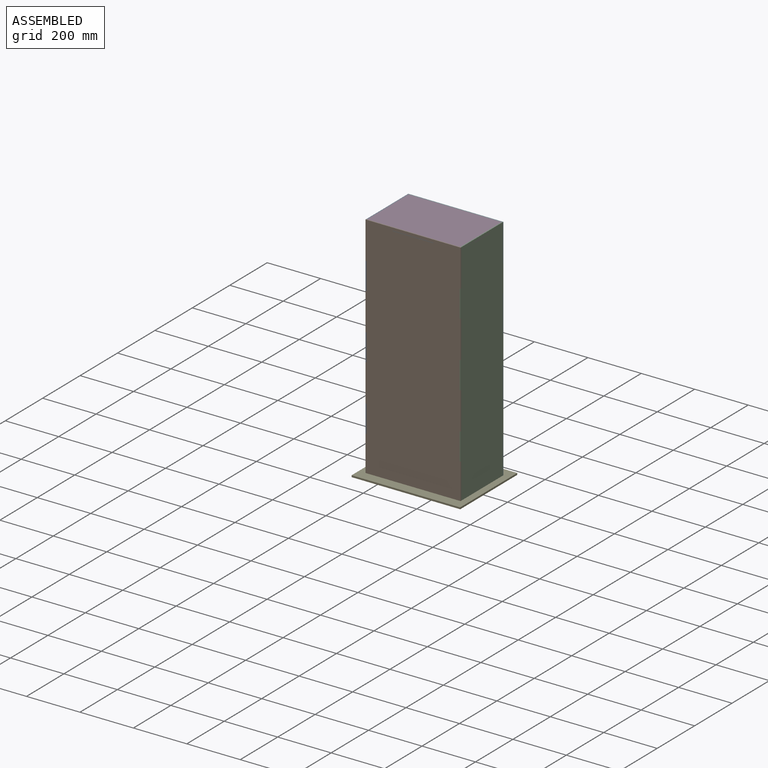
[diagram: assembled view]
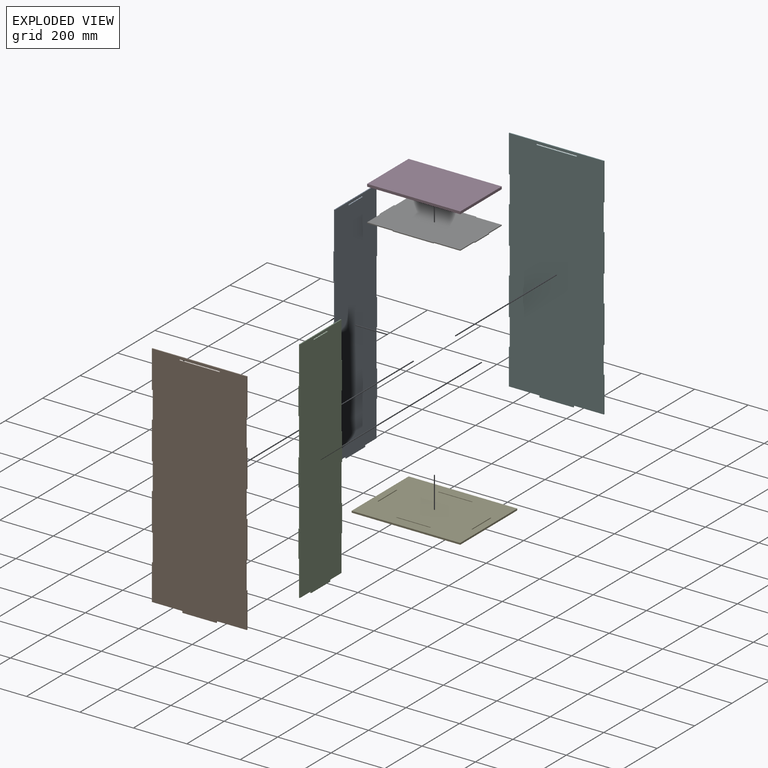
[diagram: exploded view]
GUIDED TOUR — MATED ASSEMBLY (Onshape document dd61b97c338bfc4be1c98395, AutoMate assembly dd61b97c338bfc4be1c98395_4f9fc6d36fec5bf82515c6dc_26c8da67feba95577b72dc35_default)

This assembly has 7 components, labeled P0..P6 below (a component is one placed occurrence of a part; the same part can appear more than once), held together by 18 mates. A mate is a constraint between two components; its type names the relative motion it leaves free:
  PLANAR — leaves sliding in the plane through the listed point (normal = the listed direction) and rotation about that normal free.
Axis/direction vectors are unit vectors and 'through' points are millimeter coordinates, both in the assembly's world frame.

MATES
  1. PLANAR "Planar 8": P0 <-> P4, direction (0.000, 0.000, -1.000) through (-302.09, 69.85, 383.03) mm
  2. PLANAR "Planar 9": P0 <-> P4, direction (0.000, -1.000, 0.000) through (-302.09, -61.79, 379.86) mm
  3. PLANAR "Planar 6": P5 <-> P4, direction (-1.000, 0.000, 0.000) through (-189.50, 101.60, 379.86) mm
  4. PLANAR "Planar 17": P3 <-> P1, direction (0.000, -1.000, 0.000) through (-126.00, -121.87, 1235.52) mm
  5. PLANAR "Planar 18": P3 <-> P6, direction (0.000, 0.000, -1.000) through (-126.00, -10.99, 1230.76) mm
  6. PLANAR "Planar 12": P2 <-> P4, direction (0.000, -1.000, 0.000) through (50.09, -61.79, 379.86) mm
  7. PLANAR "Planar 14": P6 <-> P0, direction (0.000, 0.000, -1.000) through (-126.00, -10.99, 1227.34) mm
  8. PLANAR "Planar 1": P1 <-> P4, direction (0.000, -1.000, 0.000) through (-126.00, -125.29, 809.81) mm
  9. PLANAR "Planar 15": P6 <-> P2, direction (1.000, 0.000, 0.000) through (48.39, -85.48, 1229.05) mm
  10. PLANAR "Planar 3": P1 <-> P4, direction (-1.000, 0.000, 0.000) through (-189.50, -123.58, 376.68) mm
  11. PLANAR "Planar 10": P2 <-> P4, direction (0.000, 0.000, -1.000) through (50.09, 69.85, 383.03) mm
  12. PLANAR "Planar 5": P5 <-> P4, direction (0.000, 0.000, -1.000) through (-246.65, 101.60, 383.03) mm
  13. PLANAR "Planar 7": P4 <-> P0, direction (-1.000, 0.000, 0.000) through (-300.38, -10.99, 379.86) mm
  14. PLANAR "Planar 13": P6 <-> P5, direction (0.000, 1.000, 0.000) through (-0.71, 99.89, 1229.05) mm
  15. PLANAR "Planar 4": P5 <-> P4, direction (0.000, 1.000, 0.000) through (-126.00, 103.31, 809.81) mm
  16. PLANAR "Planar 16": P3 <-> P0, direction (-1.000, 0.000, 0.000) through (-300.38, -10.99, 1230.76) mm
  17. PLANAR "Planar 2": P1 <-> P4, direction (0.000, 0.000, -1.000) through (-246.65, -123.58, 383.03) mm
  18. PLANAR "Planar 11": P2 <-> P4, direction (-1.000, 0.000, 0.000) through (48.39, -10.99, 809.61) mm

ASSEMBLY ORDER
  1. P6 — the base component [order verified]
  2. P4 [order verified]
  3. P3 [order verified]
  4. P2 [order verified]
  5. P0 [order verified]
  6. P5 [order verified]
  7. P1 [order verified]
Order-tag legend:
  [order verified] — this step's position reverses a verified removal order: the component was checked to insert without passing through the ones already placed.

Of the 7 components, 7 carry the full construction recipe — the FeatureScript program that regenerates the part's solid from scratch; the rest are supplied as boundary geometry only.
Each toured component is shown spotlighted twice — in the assembled view, then in the exploded view, where a leader line traces a displaced component back to its assembled socket (saturated green if recipe-attached, orange if geometry-only; every other component desaturated gray) — followed by its recipe or geometry summary and the mates that hold it.
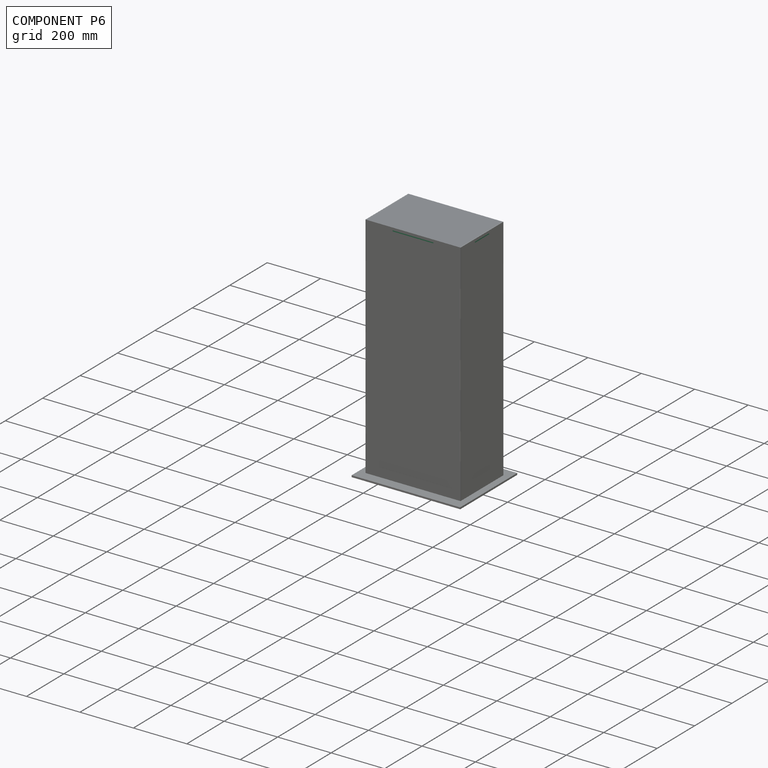
[diagram: component P6 — assembled]
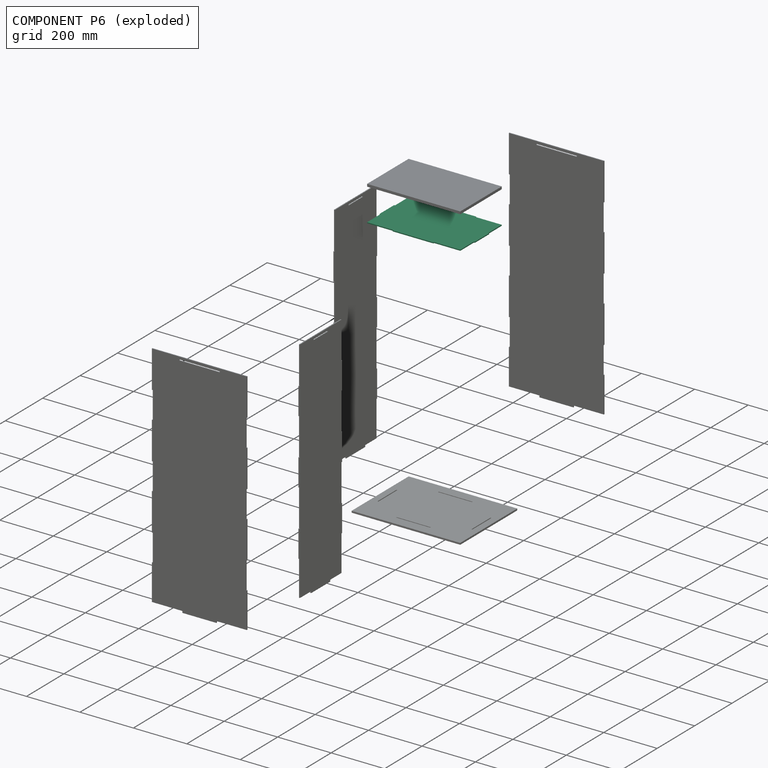
[diagram: component P6 — exploded]
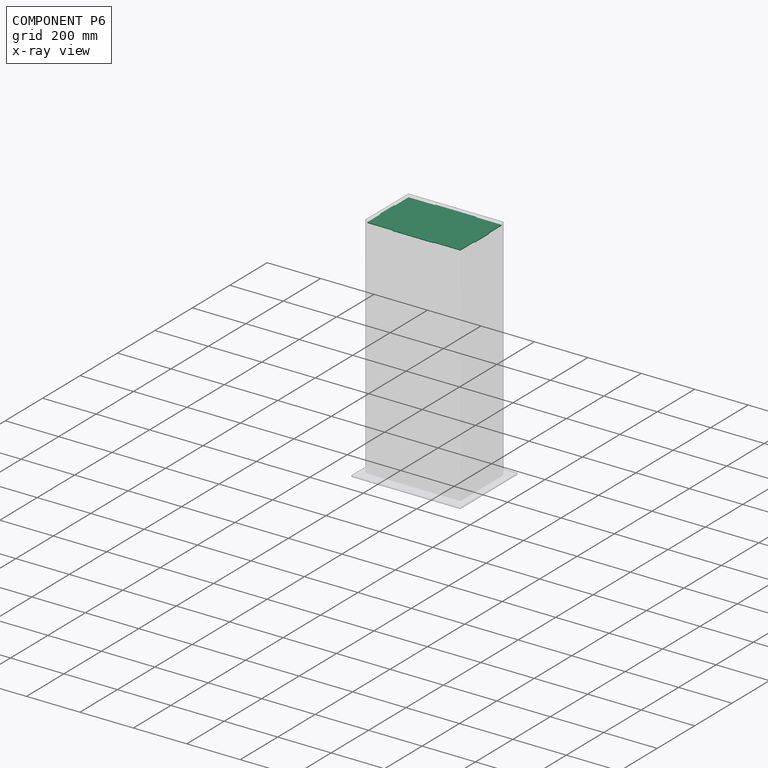
[diagram: component P6 — x-ray view]
COMPONENT P6 — recipe-attached (CADFS 00907408, mesh-verified: the recipe's output STEP matches this component's geometry to below the mesh-comparison resolution (tessellation chordal tolerance ~0.634 mm)).
Held by: PLANAR mate "Planar 18" to P3; PLANAR mate "Planar 14" to P0; PLANAR mate "Planar 15" to P2; PLANAR mate "Planar 13" to P5.
Construction recipe (FeatureScript — the CAD program that rebuilds this solid; sketch coordinates are in the units given by the * unit suffixes, e.g. mm):

FeatureScript 1511;
import(path : "onshape/std/geometry.fs", version : "1511.0");
import(path : "onshape/std/common.fs", version : "1511.0");
const mm = millimeter;
const VERTEX = EntityType.VERTEX;
const EDGE = EntityType.EDGE;
const FACE = EntityType.FACE;
const BODY = EntityType.BODY;
function v(x, y){return vector(x, y);}
function OD(order){return orderDisambiguation(order);}
function OSD(set){return originalSetDisambiguation(set);}
function TD(topology){return topologyDisambiguation(topology);}
function TDD(query){return trueDependencyDisambiguation(query);}
function sQuery(a, b, c) {return sketchEntityQuery(a, b, c);}

annotation { "Feature Type Name" : "Feature", "Feature Type Description" : "" }
export const myFeature = defineFeature(function(context is Context, id is Id, definition is map)
    precondition{}
    {
        {
            var Q0;
            Q0=qCreatedBy(makeId("Top.planeOp"),FACE);
            var sketch = newSketch(context, id + "F0", { "sketchPlane" : qUnion([Q0])});
            skLineSegment(sketch, "E0", {"start": v(-76.2, -114.3) * mm, "end": v(76.2, -114.3) * mm});
            skLineSegment(sketch, "E1", {"start": v(76.2, -114.3) * mm, "end": v(76.2, -110.88) * mm});
            skLineSegment(sketch, "E2", {"start": v(76.2, -110.88) * mm, "end": v(174.38, -110.88) * mm});
            skLineSegment(sketch, "E3", {"start": v(174.38, -110.88) * mm, "end": v(174.38, -38.1) * mm});
            skLineSegment(sketch, "E4", {"start": v(174.38, -38.1) * mm, "end": v(177.8, -38.1) * mm});
            skLineSegment(sketch, "E5", {"start": v(177.8, -38.1) * mm, "end": v(177.8, 38.1) * mm});
            skLineSegment(sketch, "E6", {"start": v(177.8, 38.1) * mm, "end": v(174.38, 38.1) * mm});
            skLineSegment(sketch, "E7", {"start": v(174.38, 38.1) * mm, "end": v(174.38, 110.88) * mm});
            skLineSegment(sketch, "E8", {"start": v(174.38, 110.88) * mm, "end": v(76.2, 110.88) * mm});
            skLineSegment(sketch, "E9", {"start": v(76.2, 110.88) * mm, "end": v(76.2, 114.3) * mm});
            skLineSegment(sketch, "E10", {"start": v(76.2, 114.3) * mm, "end": v(-76.2, 114.3) * mm});
            skLineSegment(sketch, "E11", {"start": v(-76.2, 114.3) * mm, "end": v(-76.2, 110.88) * mm});
            skLineSegment(sketch, "E12", {"start": v(-76.2, 110.88) * mm, "end": v(-174.38, 110.88) * mm});
            skLineSegment(sketch, "E13", {"start": v(-174.38, 110.88) * mm, "end": v(-174.38, 38.1) * mm});
            skLineSegment(sketch, "E14", {"start": v(-174.38, 38.1) * mm, "end": v(-177.8, 38.1) * mm});
            skLineSegment(sketch, "E15", {"start": v(-177.8, 38.1) * mm, "end": v(-177.8, -38.1) * mm});
            skLineSegment(sketch, "E16", {"start": v(-177.8, -38.1) * mm, "end": v(-174.38, -38.1) * mm});
            skLineSegment(sketch, "E17", {"start": v(-174.38, -38.1) * mm, "end": v(-174.38, -110.88) * mm});
            skLineSegment(sketch, "E18", {"start": v(-174.38, -110.88) * mm, "end": v(-76.2, -110.88) * mm});
            skLineSegment(sketch, "E19", {"start": v(-76.2, -110.88) * mm, "end": v(-76.2, -114.3) * mm});
            skSolve(sketch);
        }
        {
            var Q0;
            Q0 = qSketchRegion(id + "F0", true);
            extrude(context, id + "F1", {"entities" : qUnion([Q0]), "depth" : 3.42 * mm, "offsetDistance" : 25.4 * mm});
        }
    });
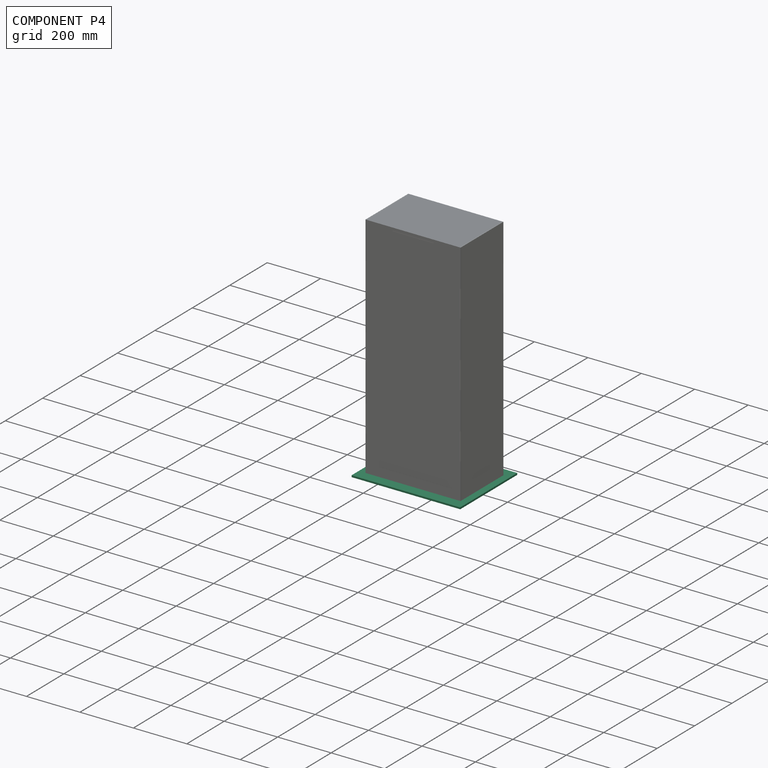
[diagram: component P4 — assembled]
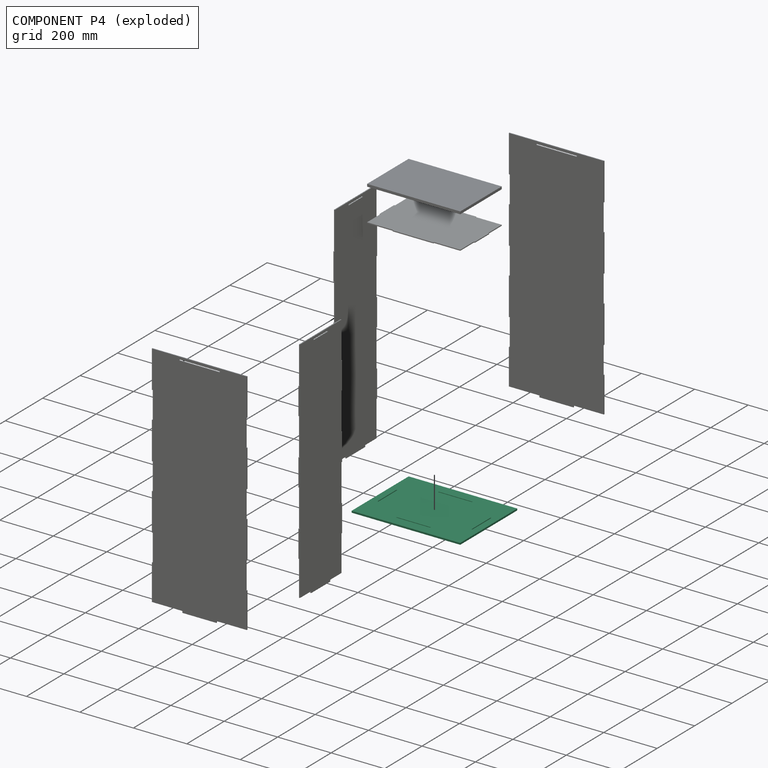
[diagram: component P4 — exploded]
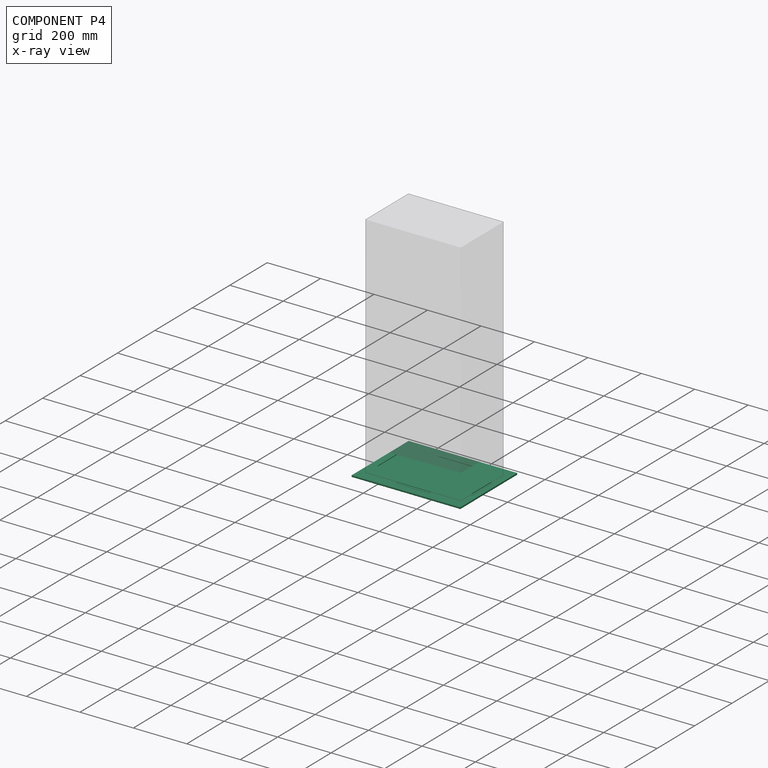
[diagram: component P4 — x-ray view]
COMPONENT P4 — recipe-attached (CADFS 00907405, mesh-verified: the recipe's output STEP matches this component's geometry to below the mesh-comparison resolution (tessellation chordal tolerance ~0.762 mm)).
Held by: PLANAR mate "Planar 8" to P0; PLANAR mate "Planar 9" to P0; PLANAR mate "Planar 6" to P5; PLANAR mate "Planar 12" to P2; PLANAR mate "Planar 1" to P1; PLANAR mate "Planar 3" to P1; PLANAR mate "Planar 10" to P2; PLANAR mate "Planar 5" to P5; PLANAR mate "Planar 7" to P0; PLANAR mate "Planar 4" to P5; PLANAR mate "Planar 2" to P1; PLANAR mate "Planar 11" to P2.
Construction recipe (FeatureScript — the CAD program that rebuilds this solid; sketch coordinates are in the units given by the * unit suffixes, e.g. mm):

FeatureScript 1511;
import(path : "onshape/std/geometry.fs", version : "1511.0");
import(path : "onshape/std/common.fs", version : "1511.0");
const mm = millimeter;
const VERTEX = EntityType.VERTEX;
const EDGE = EntityType.EDGE;
const FACE = EntityType.FACE;
const BODY = EntityType.BODY;
function v(x, y){return vector(x, y);}
function OD(order){return orderDisambiguation(order);}
function OSD(set){return originalSetDisambiguation(set);}
function TD(topology){return topologyDisambiguation(topology);}
function TDD(query){return trueDependencyDisambiguation(query);}
function sQuery(a, b, c) {return sketchEntityQuery(a, b, c);}

annotation { "Feature Type Name" : "Feature", "Feature Type Description" : "" }
export const myFeature = defineFeature(function(context is Context, id is Id, definition is map)
    precondition{}
    {
        {
            var Q0;
            Q0=qCreatedBy(makeId("Top.planeOp"),FACE);
            var sketch = newSketch(context, id + "F0", { "sketchPlane" : qUnion([Q0])});
            skLineSegment(sketch, "E0.bottom", {"start": v(-203.2, 152.4) * mm, "end": v(203.2, 152.4) * mm});
            skLineSegment(sketch, "E0.top", {"start": v(-203.2, -152.4) * mm, "end": v(203.2, -152.4) * mm});
            skLineSegment(sketch, "E0.left", {"start": v(-203.2, 152.4) * mm, "end": v(-203.2, -152.4) * mm});
            skLineSegment(sketch, "E0.right", {"start": v(203.2, 152.4) * mm, "end": v(203.2, -152.4) * mm});
            skLineSegment(sketch, "E1.bottom", {"start": v(-177.8, 50.8) * mm, "end": v(-174.38, 50.8) * mm});
            skLineSegment(sketch, "E1.top", {"start": v(-177.8, -50.8) * mm, "end": v(-174.38, -50.8) * mm});
            skLineSegment(sketch, "E1.left", {"start": v(-177.8, 50.8) * mm, "end": v(-177.8, -50.8) * mm});
            skLineSegment(sketch, "E1.right", {"start": v(-174.38, 50.8) * mm, "end": v(-174.38, -50.8) * mm});
            skLineSegment(sketch, "E2.bottom", {"start": v(-63.5, 114.3) * mm, "end": v(63.5, 114.3) * mm});
            skLineSegment(sketch, "E2.top", {"start": v(-63.5, 110.88) * mm, "end": v(63.5, 110.88) * mm});
            skLineSegment(sketch, "E2.left", {"start": v(-63.5, 114.3) * mm, "end": v(-63.5, 110.88) * mm});
            skLineSegment(sketch, "E2.right", {"start": v(63.5, 114.3) * mm, "end": v(63.5, 110.88) * mm});
            skLineSegment(sketch, "E3.bottom", {"start": v(-63.5, -110.88) * mm, "end": v(63.5, -110.88) * mm});
            skLineSegment(sketch, "E3.top", {"start": v(-63.5, -114.3) * mm, "end": v(63.5, -114.3) * mm});
            skLineSegment(sketch, "E3.left", {"start": v(-63.5, -110.88) * mm, "end": v(-63.5, -114.3) * mm});
            skLineSegment(sketch, "E3.right", {"start": v(63.5, -110.88) * mm, "end": v(63.5, -114.3) * mm});
            skLineSegment(sketch, "E4.bottom", {"start": v(174.38, 50.8) * mm, "end": v(177.8, 50.8) * mm});
            skLineSegment(sketch, "E4.top", {"start": v(174.38, -50.8) * mm, "end": v(177.8, -50.8) * mm});
            skLineSegment(sketch, "E4.left", {"start": v(174.38, 50.8) * mm, "end": v(174.38, -50.8) * mm});
            skLineSegment(sketch, "E4.right", {"start": v(177.8, 50.8) * mm, "end": v(177.8, -50.8) * mm});
            skLineSegment(sketch, "E5", {"start": v(-177.8, 50.8) * mm, "end": v(-177.8, 114.3) * mm, "construction": true});
            skLineSegment(sketch, "E6", {"start": v(-177.8, 114.3) * mm, "end": v(-63.5, 114.3) * mm, "construction": true});
            skLineSegment(sketch, "E7", {"start": v(63.5, 114.3) * mm, "end": v(177.8, 114.3) * mm, "construction": true});
            skLineSegment(sketch, "E8", {"start": v(177.8, 114.3) * mm, "end": v(177.8, 50.8) * mm, "construction": true});
            skLineSegment(sketch, "E9", {"start": v(177.8, -50.8) * mm, "end": v(177.8, -114.3) * mm, "construction": true});
            skLineSegment(sketch, "E10", {"start": v(177.8, -114.3) * mm, "end": v(63.5, -114.3) * mm, "construction": true});
            skLineSegment(sketch, "E11", {"start": v(-63.5, -114.3) * mm, "end": v(-177.8, -114.3) * mm, "construction": true});
            skLineSegment(sketch, "E12", {"start": v(-177.8, -114.3) * mm, "end": v(-177.8, -50.8) * mm, "construction": true});
            skSolve(sketch);
        }
        {
            var Q0;
            Q0=makeQuery(id+"F0.imprint","IMPRINT",FACE,{"disambiguationData":[TD([[makeQuery(id+"F0.imprint","IMPRINT",EDGE,{"derivedFrom":sQuery(id+"F0.wireOp",EDGE,"E0.bottom")}),-1.0]])]});
            extrude(context, id + "F1", {"entities" : qUnion([Q0]), "oppositeDirection" : true, "depth" : 6.35 * mm, "offsetDistance" : 25.4 * mm});
        }
    });
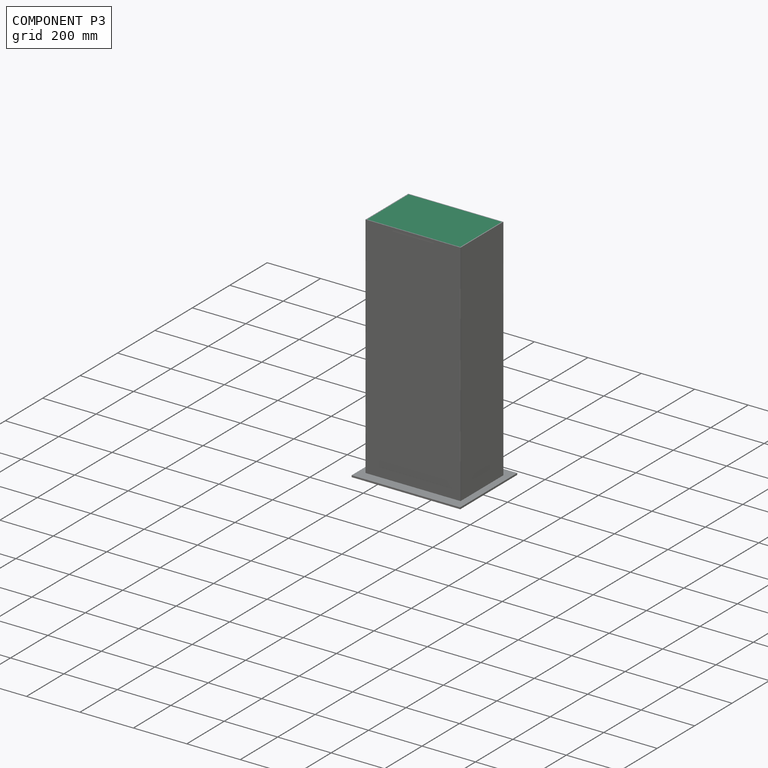
[diagram: component P3 — assembled]
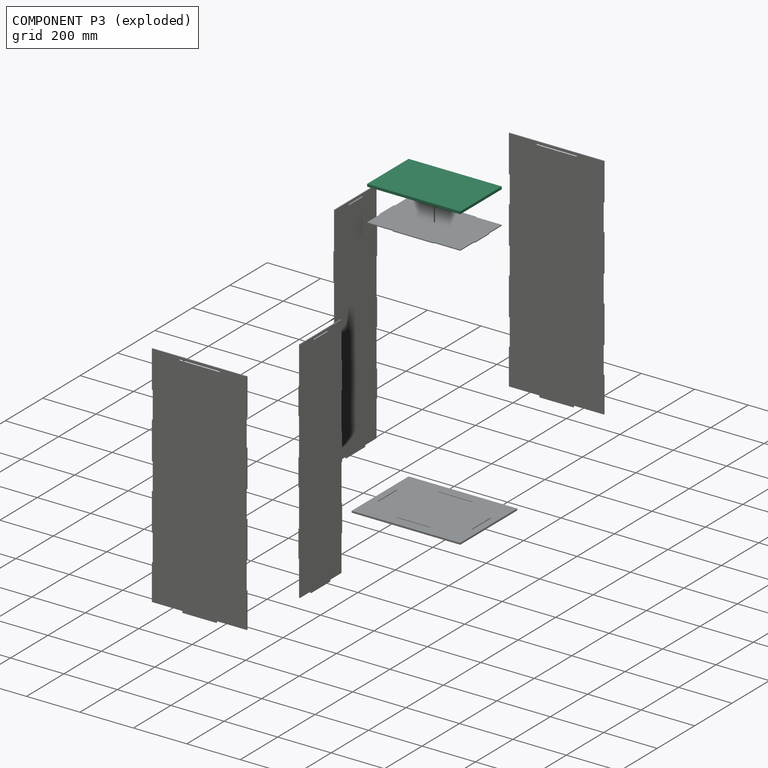
[diagram: component P3 — exploded]
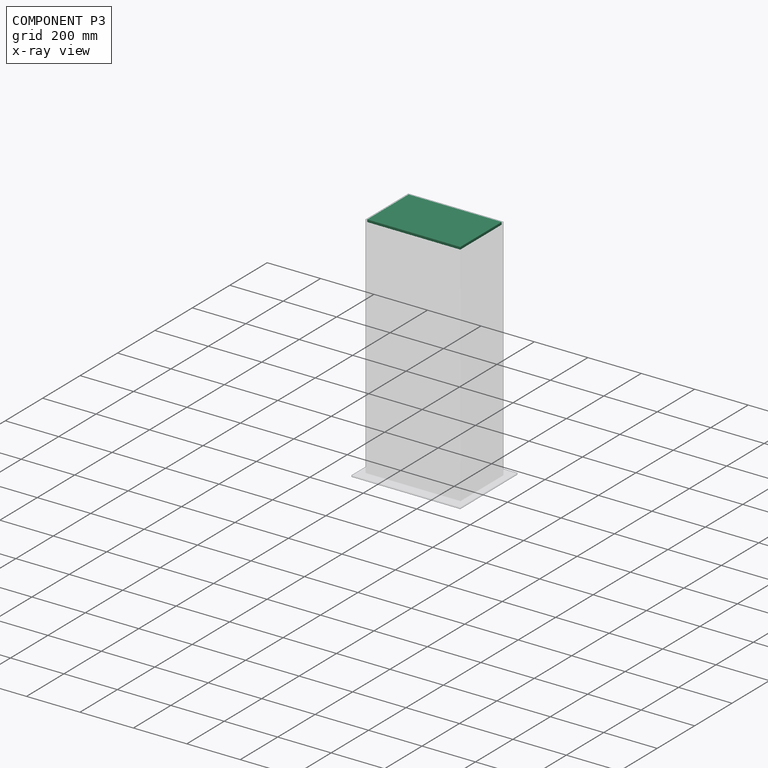
[diagram: component P3 — x-ray view]
COMPONENT P3 — recipe-attached (CADFS 00907409, mesh-verified: the recipe's output STEP matches this component's geometry to below the mesh-comparison resolution (tessellation chordal tolerance ~0.62 mm)).
Held by: PLANAR mate "Planar 17" to P1; PLANAR mate "Planar 18" to P6; PLANAR mate "Planar 16" to P0.
Construction recipe (FeatureScript — the CAD program that rebuilds this solid; sketch coordinates are in the units given by the * unit suffixes, e.g. mm):

FeatureScript 1511;
import(path : "onshape/std/geometry.fs", version : "1511.0");
import(path : "onshape/std/common.fs", version : "1511.0");
const mm = millimeter;
const VERTEX = EntityType.VERTEX;
const EDGE = EntityType.EDGE;
const FACE = EntityType.FACE;
const BODY = EntityType.BODY;
function v(x, y){return vector(x, y);}
function OD(order){return orderDisambiguation(order);}
function OSD(set){return originalSetDisambiguation(set);}
function TD(topology){return topologyDisambiguation(topology);}
function TDD(query){return trueDependencyDisambiguation(query);}
function sQuery(a, b, c) {return sketchEntityQuery(a, b, c);}

annotation { "Feature Type Name" : "Feature", "Feature Type Description" : "" }
export const myFeature = defineFeature(function(context is Context, id is Id, definition is map)
    precondition{}
    {
        {
            var Q0;
            Q0=qCreatedBy(makeId("Top.planeOp"),FACE);
            var sketch = newSketch(context, id + "F0", { "sketchPlane" : qUnion([Q0])});
            skLineSegment(sketch, "E0.bottom", {"start": v(-177.8, 114.3) * mm, "end": v(177.8, 114.3) * mm, "construction": true});
            skLineSegment(sketch, "E0.top", {"start": v(-177.8, -114.3) * mm, "end": v(177.8, -114.3) * mm, "construction": true});
            skLineSegment(sketch, "E0.left", {"start": v(-177.8, 114.3) * mm, "end": v(-177.8, -114.3) * mm, "construction": true});
            skLineSegment(sketch, "E0.right", {"start": v(177.8, 114.3) * mm, "end": v(177.8, -114.3) * mm, "construction": true});
            skLineSegment(sketch, "E1.0", {"start": v(-174.38, 110.88) * mm, "end": v(174.38, 110.88) * mm});
            skLineSegment(sketch, "E1.1", {"start": v(-174.38, 110.88) * mm, "end": v(-174.38, -110.88) * mm});
            skLineSegment(sketch, "E1.2", {"start": v(-174.38, -110.88) * mm, "end": v(174.38, -110.88) * mm});
            skLineSegment(sketch, "E1.3", {"start": v(174.38, 110.88) * mm, "end": v(174.38, -110.88) * mm});
            skSolve(sketch);
        }
        {
            var Q0;
            Q0 = qSketchRegion(id + "F0", true);
            extrude(context, id + "F1", {"entities" : qUnion([Q0]), "depth" : 9.52 * mm, "offsetDistance" : 25.4 * mm});
        }
    });
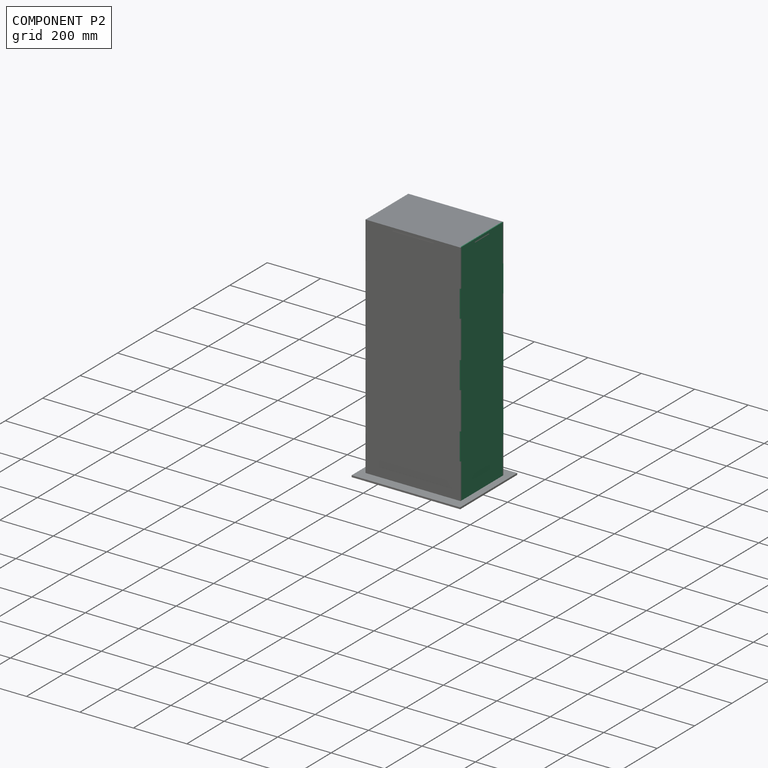
[diagram: component P2 — assembled]
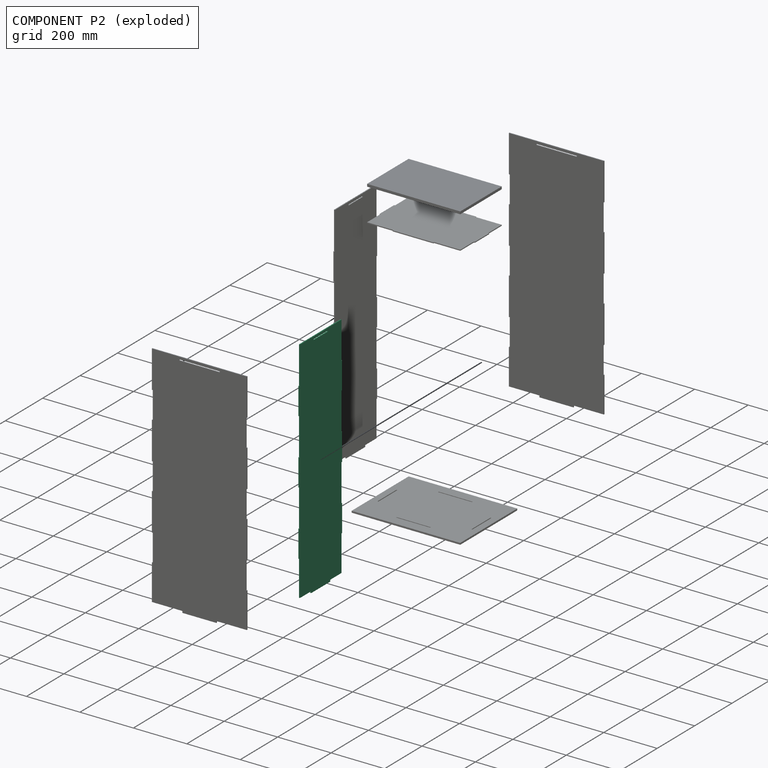
[diagram: component P2 — exploded]
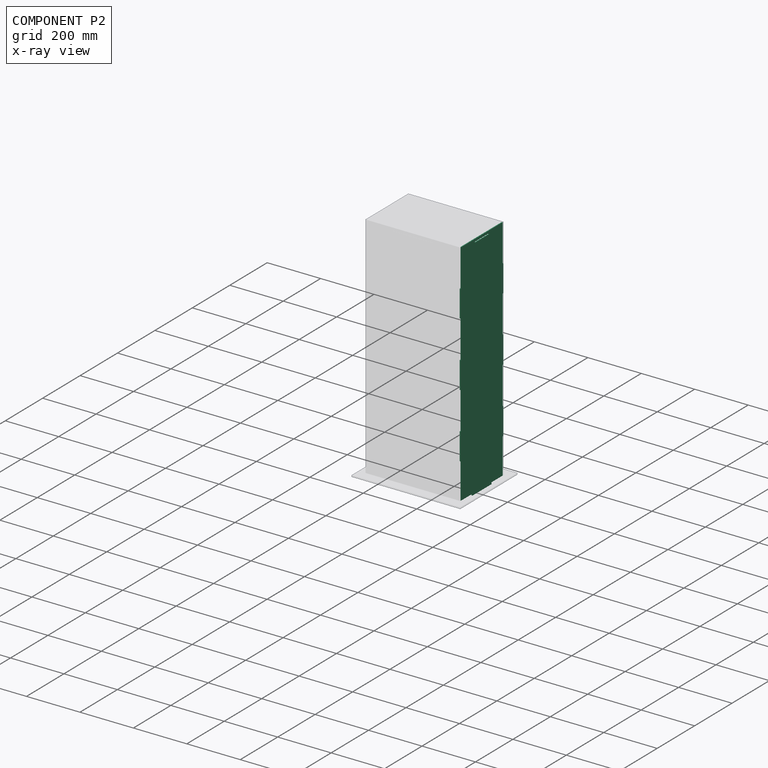
[diagram: component P2 — x-ray view]
COMPONENT P2 — same part as P0 (CADFS 00907407); its construction recipe is shown at P0.
Held by: PLANAR mate "Planar 12" to P4; PLANAR mate "Planar 15" to P6; PLANAR mate "Planar 10" to P4; PLANAR mate "Planar 11" to P4.
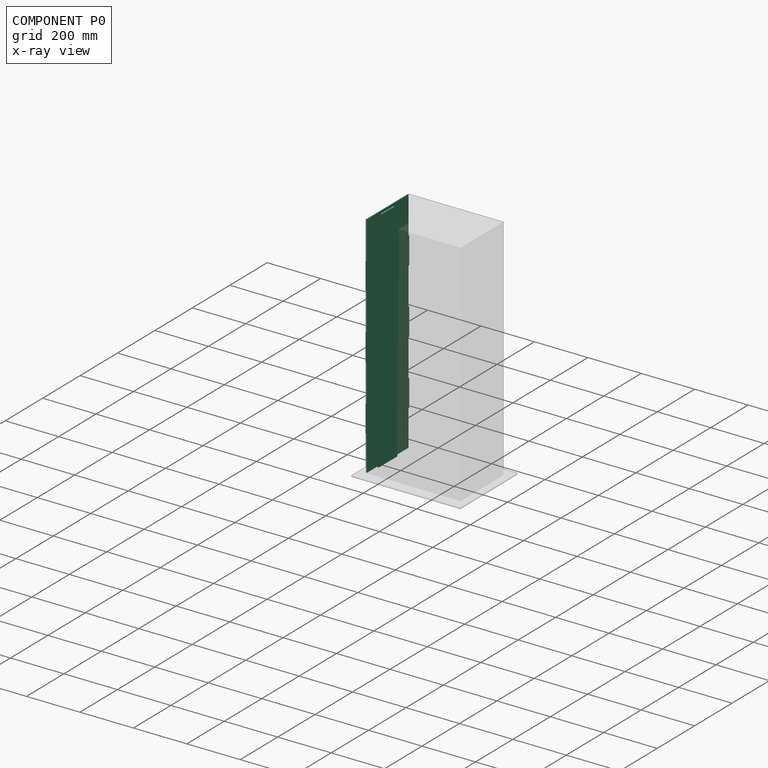
[diagram: component P0 — x-ray view]
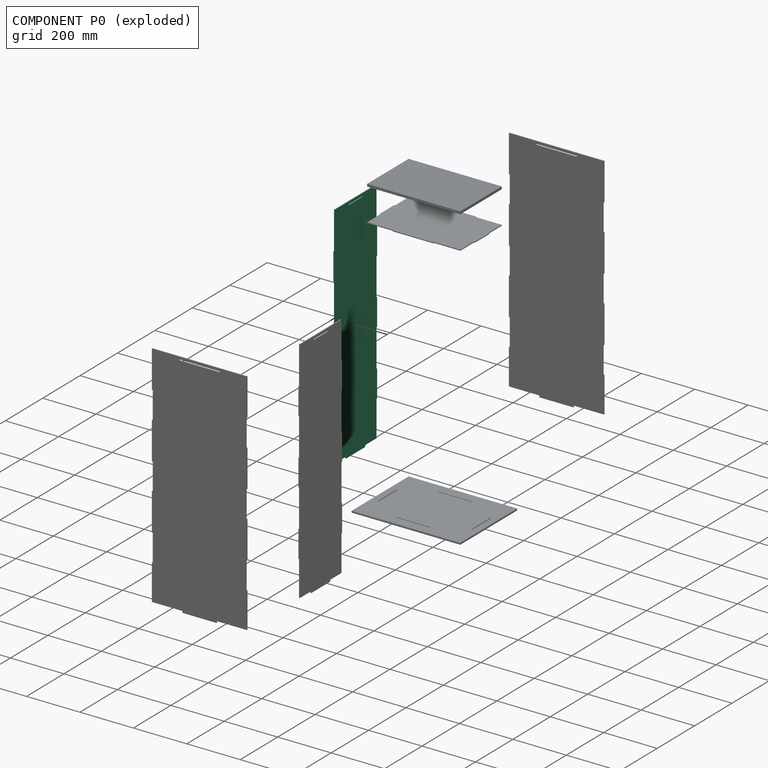
[diagram: component P0 — exploded]
COMPONENT P0 — recipe-attached (CADFS 00907407, mesh-verified: the recipe's output STEP matches this component's geometry to below the mesh-comparison resolution (tessellation chordal tolerance ~1.34 mm)).
Held by: PLANAR mate "Planar 8" to P4; PLANAR mate "Planar 9" to P4; PLANAR mate "Planar 14" to P6; PLANAR mate "Planar 7" to P4; PLANAR mate "Planar 16" to P3.
Construction recipe (FeatureScript — the CAD program that rebuilds this solid; sketch coordinates are in the units given by the * unit suffixes, e.g. mm):

FeatureScript 1511;
import(path : "onshape/std/geometry.fs", version : "1511.0");
import(path : "onshape/std/common.fs", version : "1511.0");
const mm = millimeter;
const VERTEX = EntityType.VERTEX;
const EDGE = EntityType.EDGE;
const FACE = EntityType.FACE;
const BODY = EntityType.BODY;
function v(x, y){return vector(x, y);}
function OD(order){return orderDisambiguation(order);}
function OSD(set){return originalSetDisambiguation(set);}
function TD(topology){return topologyDisambiguation(topology);}
function TDD(query){return trueDependencyDisambiguation(query);}
function sQuery(a, b, c) {return sketchEntityQuery(a, b, c);}

annotation { "Feature Type Name" : "Feature", "Feature Type Description" : "" }
export const myFeature = defineFeature(function(context is Context, id is Id, definition is map)
    precondition{}
    {
        {
            var Q0;
            Q0=qCreatedBy(makeId("Right.planeOp"),FACE);
            var sketch = newSketch(context, id + "F0", { "sketchPlane" : qUnion([Q0])});
            skLineSegment(sketch, "E0", {"start": v(-50.8, -6.35) * mm, "end": v(50.8, -6.35) * mm});
            skLineSegment(sketch, "E1", {"start": v(50.8, -6.35) * mm, "end": v(50.8, 0) * mm});
            skLineSegment(sketch, "E2", {"start": v(-50.8, -6.35) * mm, "end": v(-50.8, 0) * mm});
            skLineSegment(sketch, "E3", {"start": v(-50.8, 0) * mm, "end": v(-110.88, 0) * mm});
            skLineSegment(sketch, "E4", {"start": v(-110.88, 0) * mm, "end": v(-110.88, 133.35) * mm});
            skLineSegment(sketch, "E5", {"start": v(-110.88, 133.35) * mm, "end": v(-114.3, 133.35) * mm});
            skLineSegment(sketch, "E6", {"start": v(-114.3, 133.35) * mm, "end": v(-114.3, 234.95) * mm});
            skLineSegment(sketch, "E7", {"start": v(-114.3, 234.95) * mm, "end": v(-110.88, 234.95) * mm});
            skLineSegment(sketch, "E8", {"start": v(-110.88, 234.95) * mm, "end": v(-110.88, 374.65) * mm});
            skLineSegment(sketch, "E9", {"start": v(-110.88, 374.65) * mm, "end": v(-114.3, 374.65) * mm});
            skLineSegment(sketch, "E10", {"start": v(-114.3, 374.65) * mm, "end": v(-114.3, 476.25) * mm});
            skLineSegment(sketch, "E11", {"start": v(-114.3, 476.25) * mm, "end": v(-110.88, 476.25) * mm});
            skLineSegment(sketch, "E12", {"start": v(-110.88, 476.25) * mm, "end": v(-110.88, 615.95) * mm});
            skLineSegment(sketch, "E13", {"start": v(-110.88, 615.95) * mm, "end": v(-114.3, 615.95) * mm});
            skLineSegment(sketch, "E14", {"start": v(-114.3, 615.95) * mm, "end": v(-114.3, 717.55) * mm});
            skLineSegment(sketch, "E15", {"start": v(-114.3, 717.55) * mm, "end": v(-110.88, 717.55) * mm});
            skLineSegment(sketch, "E16", {"start": v(50.8, 0) * mm, "end": v(110.88, 0) * mm});
            skLineSegment(sketch, "E17", {"start": v(-110.88, 717.55) * mm, "end": v(-110.88, 857.25) * mm});
            skLineSegment(sketch, "E18", {"start": v(-110.88, 857.25) * mm, "end": v(-38.1, 857.25) * mm});
            skLineSegment(sketch, "E19", {"start": v(-38.1, 847.72) * mm, "end": v(-38.1, 844.3) * mm});
            skLineSegment(sketch, "E20", {"start": v(-38.1, 844.3) * mm, "end": v(38.1, 844.3) * mm});
            skLineSegment(sketch, "E21", {"start": v(38.1, 844.3) * mm, "end": v(38.1, 847.72) * mm});
            skLineSegment(sketch, "E22", {"start": v(38.1, 857.25) * mm, "end": v(110.88, 857.25) * mm});
            skLineSegment(sketch, "E23", {"start": v(0, 844.3) * mm, "end": v(0, 0) * mm, "construction": true});
            skLineSegment(sketch, "E24.MirrorCS", {"start": v(110.88, 374.65) * mm, "end": v(114.3, 374.65) * mm});
            skLineSegment(sketch, "E25.MirrorCS", {"start": v(110.88, 615.95) * mm, "end": v(114.3, 615.95) * mm});
            skLineSegment(sketch, "E26.MirrorCS", {"start": v(110.88, 133.35) * mm, "end": v(114.3, 133.35) * mm});
            skLineSegment(sketch, "E27.MirrorCS", {"start": v(114.3, 476.25) * mm, "end": v(110.88, 476.25) * mm});
            skLineSegment(sketch, "E28.MirrorCS", {"start": v(114.3, 234.95) * mm, "end": v(110.88, 234.95) * mm});
            skLineSegment(sketch, "E29.MirrorCS", {"start": v(114.3, 717.55) * mm, "end": v(110.88, 717.55) * mm});
            skLineSegment(sketch, "E30.MirrorCS", {"start": v(110.88, 476.25) * mm, "end": v(110.88, 615.95) * mm});
            skLineSegment(sketch, "E31.MirrorCS", {"start": v(110.88, 234.95) * mm, "end": v(110.88, 374.65) * mm});
            skLineSegment(sketch, "E32.MirrorCS", {"start": v(110.88, 717.55) * mm, "end": v(110.88, 857.25) * mm});
            skLineSegment(sketch, "E33.MirrorCS", {"start": v(114.3, 374.65) * mm, "end": v(114.3, 476.25) * mm});
            skLineSegment(sketch, "E34.MirrorCS", {"start": v(114.3, 133.35) * mm, "end": v(114.3, 234.95) * mm});
            skLineSegment(sketch, "E35.MirrorCS", {"start": v(110.88, 0) * mm, "end": v(110.88, 133.35) * mm});
            skLineSegment(sketch, "E36.MirrorCS", {"start": v(114.3, 615.95) * mm, "end": v(114.3, 717.55) * mm});
            skLineSegment(sketch, "E37", {"start": v(-38.1, 857.25) * mm, "end": v(38.1, 857.25) * mm});
            skLineSegment(sketch, "E38.0", {"start": v(-38.1, 847.72) * mm, "end": v(38.1, 847.72) * mm});
            skSolve(sketch);
        }
        {
            var Q0;
            Q0 = qSketchRegion(id + "F0", true);
            extrude(context, id + "F1", {"entities" : qUnion([Q0]), "depth" : 3.42 * mm, "offsetDistance" : 25.4 * mm});
        }
    });
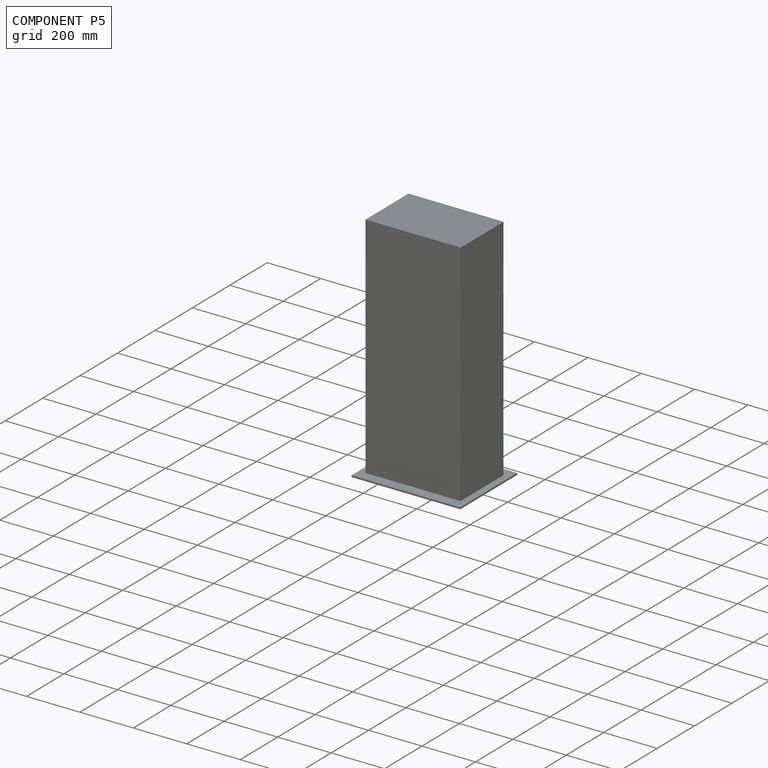
[diagram: component P5 — assembled]
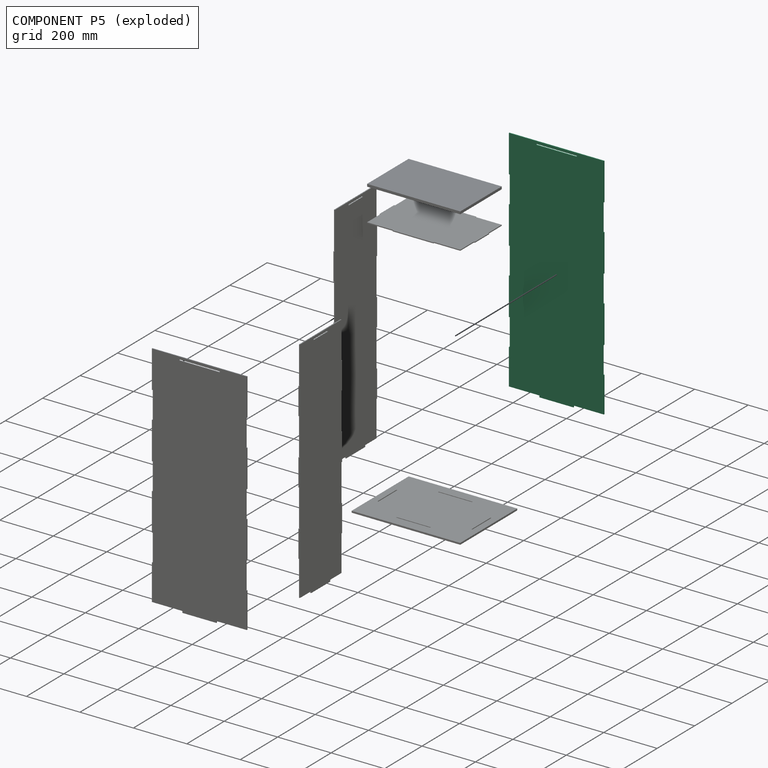
[diagram: component P5 — exploded]
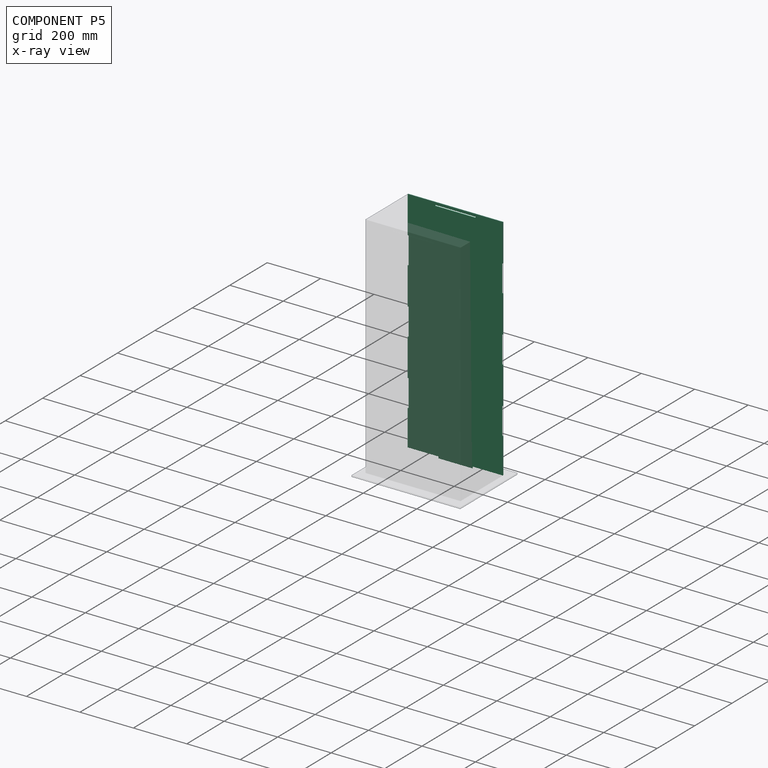
[diagram: component P5 — x-ray view]
COMPONENT P5 — same part as P1 (CADFS 00907406); its construction recipe is shown at P1.
Held by: PLANAR mate "Planar 6" to P4; PLANAR mate "Planar 5" to P4; PLANAR mate "Planar 13" to P6; PLANAR mate "Planar 4" to P4.
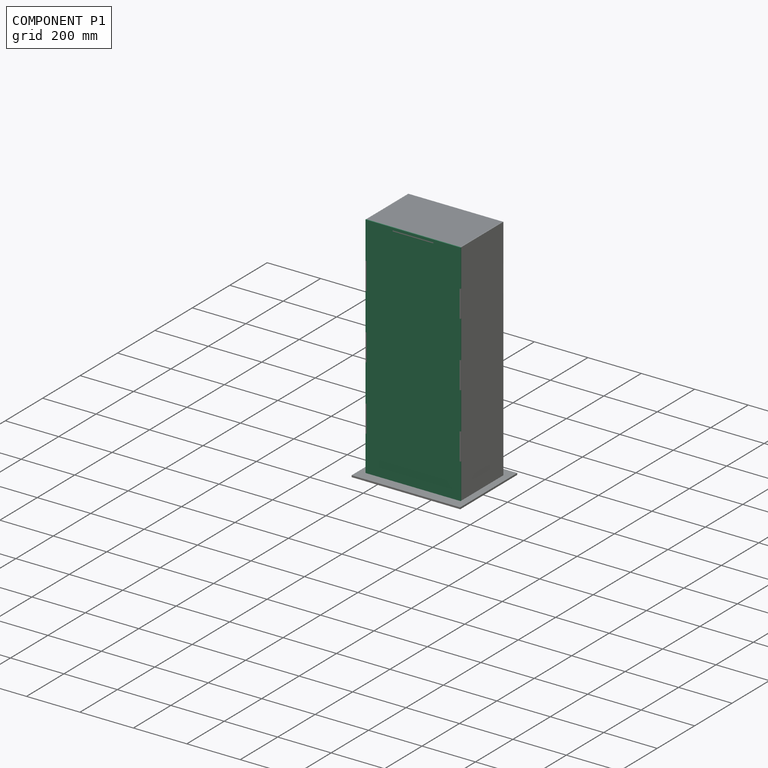
[diagram: component P1 — assembled]
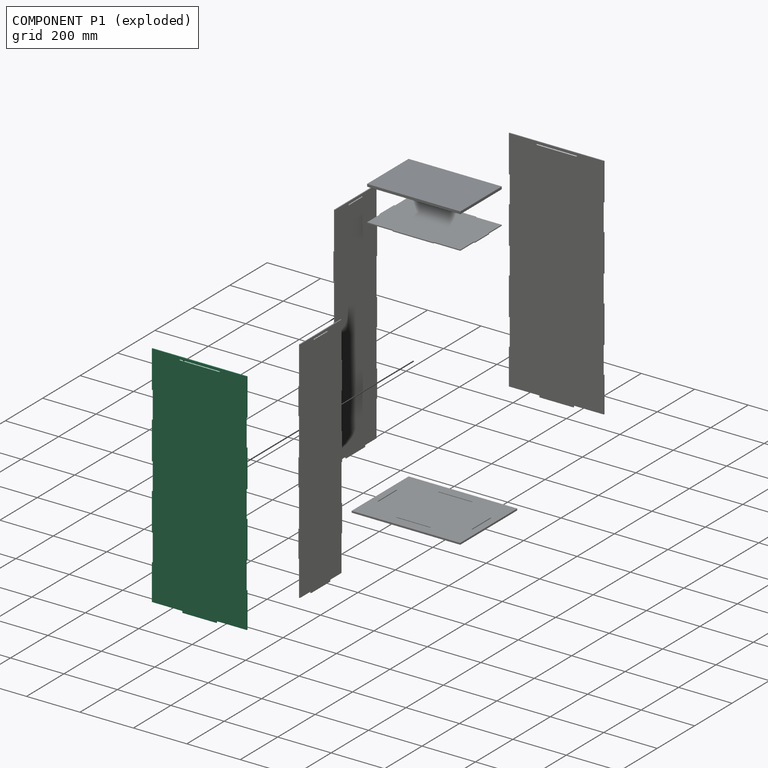
[diagram: component P1 — exploded]
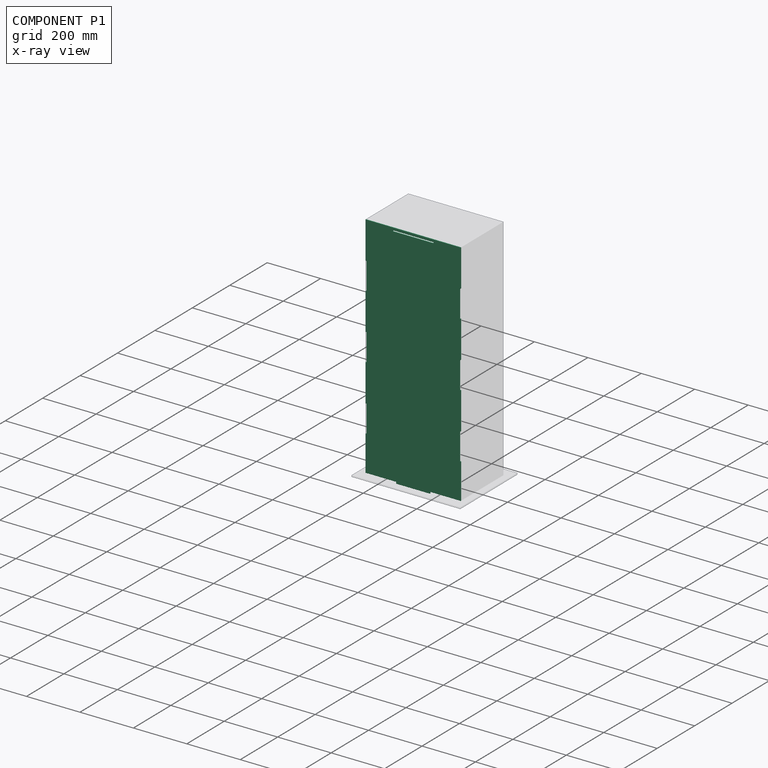
[diagram: component P1 — x-ray view]
COMPONENT P1 — recipe-attached (CADFS 00907406, mesh-verified: the recipe's output STEP matches this component's geometry to below the mesh-comparison resolution (tessellation chordal tolerance ~1.4 mm)).
Held by: PLANAR mate "Planar 17" to P3; PLANAR mate "Planar 1" to P4; PLANAR mate "Planar 3" to P4; PLANAR mate "Planar 2" to P4.
Construction recipe (FeatureScript — the CAD program that rebuilds this solid; sketch coordinates are in the units given by the * unit suffixes, e.g. mm):

FeatureScript 1511;
import(path : "onshape/std/geometry.fs", version : "1511.0");
import(path : "onshape/std/common.fs", version : "1511.0");
const mm = millimeter;
const VERTEX = EntityType.VERTEX;
const EDGE = EntityType.EDGE;
const FACE = EntityType.FACE;
const BODY = EntityType.BODY;
function v(x, y){return vector(x, y);}
function OD(order){return orderDisambiguation(order);}
function OSD(set){return originalSetDisambiguation(set);}
function TD(topology){return topologyDisambiguation(topology);}
function TDD(query){return trueDependencyDisambiguation(query);}
function sQuery(a, b, c) {return sketchEntityQuery(a, b, c);}

annotation { "Feature Type Name" : "Feature", "Feature Type Description" : "" }
export const myFeature = defineFeature(function(context is Context, id is Id, definition is map)
    precondition{}
    {
        {
            var Q0;
            Q0=qCreatedBy(makeId("Front.planeOp"),FACE);
            var sketch = newSketch(context, id + "F0", { "sketchPlane" : qUnion([Q0])});
            skLineSegment(sketch, "E0", {"start": v(-63.5, 0) * mm, "end": v(-63.5, -6.35) * mm});
            skLineSegment(sketch, "E1", {"start": v(-63.5, -6.35) * mm, "end": v(63.5, -6.35) * mm});
            skLineSegment(sketch, "E2", {"start": v(63.5, -6.35) * mm, "end": v(63.5, 0) * mm});
            skLineSegment(sketch, "E3", {"start": v(-177.8, 0) * mm, "end": v(-63.5, 0) * mm});
            skLineSegment(sketch, "E4", {"start": v(63.5, 0) * mm, "end": v(177.8, 0) * mm});
            skLineSegment(sketch, "E5", {"start": v(-177.8, 0) * mm, "end": v(-177.8, 133.35) * mm});
            skLineSegment(sketch, "E6", {"start": v(-177.8, 133.35) * mm, "end": v(-174.38, 133.35) * mm});
            skLineSegment(sketch, "E7", {"start": v(-174.38, 133.35) * mm, "end": v(-174.38, 234.95) * mm});
            skLineSegment(sketch, "E8", {"start": v(-174.38, 234.95) * mm, "end": v(-177.8, 234.95) * mm});
            skLineSegment(sketch, "E9", {"start": v(-177.8, 234.95) * mm, "end": v(-177.8, 374.65) * mm});
            skLineSegment(sketch, "E10", {"start": v(-177.8, 374.65) * mm, "end": v(-174.38, 374.65) * mm});
            skLineSegment(sketch, "E11", {"start": v(-174.38, 374.65) * mm, "end": v(-174.38, 476.25) * mm});
            skLineSegment(sketch, "E12", {"start": v(-174.38, 476.25) * mm, "end": v(-177.8, 476.25) * mm});
            skLineSegment(sketch, "E13", {"start": v(-177.8, 476.25) * mm, "end": v(-177.8, 615.95) * mm});
            skLineSegment(sketch, "E14", {"start": v(-177.8, 615.95) * mm, "end": v(-174.38, 615.95) * mm});
            skLineSegment(sketch, "E15", {"start": v(-174.38, 615.95) * mm, "end": v(-174.38, 717.55) * mm});
            skLineSegment(sketch, "E16", {"start": v(-174.38, 717.55) * mm, "end": v(-177.8, 717.55) * mm});
            skLineSegment(sketch, "E17", {"start": v(-177.8, 717.55) * mm, "end": v(-177.8, 857.25) * mm});
            skLineSegment(sketch, "E18", {"start": v(-177.8, 857.25) * mm, "end": v(-76.2, 857.25) * mm});
            skLineSegment(sketch, "E19", {"start": v(-76.2, 847.73) * mm, "end": v(-76.2, 844.3) * mm});
            skLineSegment(sketch, "E20", {"start": v(-76.2, 844.3) * mm, "end": v(76.2, 844.3) * mm});
            skLineSegment(sketch, "E21", {"start": v(76.2, 844.3) * mm, "end": v(76.2, 847.73) * mm});
            skLineSegment(sketch, "E22", {"start": v(76.2, 857.25) * mm, "end": v(177.8, 857.25) * mm});
            skLineSegment(sketch, "E23", {"start": v(0, 844.3) * mm, "end": v(0, 0) * mm, "construction": true});
            skLineSegment(sketch, "E24.MirrorCS", {"start": v(177.8, 374.65) * mm, "end": v(174.38, 374.65) * mm});
            skLineSegment(sketch, "E25.MirrorCS", {"start": v(174.38, 717.55) * mm, "end": v(177.8, 717.55) * mm});
            skLineSegment(sketch, "E26.MirrorCS", {"start": v(174.38, 476.25) * mm, "end": v(177.8, 476.25) * mm});
            skLineSegment(sketch, "E27.MirrorCS", {"start": v(177.8, 133.35) * mm, "end": v(174.38, 133.35) * mm});
            skLineSegment(sketch, "E28.MirrorCS", {"start": v(174.38, 234.95) * mm, "end": v(177.8, 234.95) * mm});
            skLineSegment(sketch, "E29.MirrorCS", {"start": v(177.8, 615.95) * mm, "end": v(174.38, 615.95) * mm});
            skLineSegment(sketch, "E30.MirrorCS", {"start": v(174.38, 133.35) * mm, "end": v(174.38, 234.95) * mm});
            skLineSegment(sketch, "E31.MirrorCS", {"start": v(174.38, 615.95) * mm, "end": v(174.38, 717.55) * mm});
            skLineSegment(sketch, "E32.MirrorCS", {"start": v(174.38, 374.65) * mm, "end": v(174.38, 476.25) * mm});
            skLineSegment(sketch, "E33.MirrorCS", {"start": v(177.8, 0) * mm, "end": v(177.8, 133.35) * mm});
            skLineSegment(sketch, "E34.MirrorCS", {"start": v(177.8, 717.55) * mm, "end": v(177.8, 857.25) * mm});
            skLineSegment(sketch, "E35.MirrorCS", {"start": v(177.8, 476.25) * mm, "end": v(177.8, 615.95) * mm});
            skLineSegment(sketch, "E36.MirrorCS", {"start": v(177.8, 234.95) * mm, "end": v(177.8, 374.65) * mm});
            skLineSegment(sketch, "E37", {"start": v(-76.2, 857.25) * mm, "end": v(76.2, 857.25) * mm});
            skLineSegment(sketch, "E38.0", {"start": v(-76.2, 847.73) * mm, "end": v(76.2, 847.73) * mm});
            skSolve(sketch);
        }
        {
            var Q0;
            Q0=makeQuery(id+"F0.imprint","IMPRINT",FACE,{"disambiguationData":[TD([[makeQuery(id+"F0.imprint","IMPRINT",EDGE,{"derivedFrom":sQuery(id+"F0.wireOp",EDGE,"E0")}),1.0]])]});
            extrude(context, id + "F1", {"entities" : qUnion([Q0]), "depth" : 3.42 * mm, "offsetDistance" : 25.4 * mm});
        }
    });
PROVENANCE & LICENSES
Assembly (occurrences, transforms, mates, per-part STEP geometry): AutoMate dataset, Zenodo record 7776208, CC0.
Construction recipes: CADFS (HuggingFace VladPyatov/CADFS, CC-BY-4.0, layered over the ABC dataset), FeatureScript reconstruction programs keyed by ABC model id.
Join: ABC meta listings map ABC model id -> Onshape documentId; within a shared document, parts are matched by geometric signature (bounding-box dims + volume at 0.1% relative tolerance, exact B-rep face/solid counts).
Verification: 7 of this assembly's 7 components carry a recipe attachment, and every attachment is mesh-verified: the CADFS STEP and the AutoMate member STEP were compared as meshes in their shared local frame (symmetric sampled-point-to-mesh distance); worst across the 7 attachments: below the mesh-comparison resolution (tessellation chordal tolerance ~1.4 mm) on a 934 mm part.
Renders: orthographic iso camera (az 35 / el 25); the floor grid conveys scale (grid pitch printed in each image; no ruler). In the exploded view each component is displaced by its stored offset vector: the offsets alone carry the explosion direction (mate normal/axis signs are not orientation cues and do not encode it), and separation distances are assigned per mate-chain, not proportionally to assembly-order depth.
